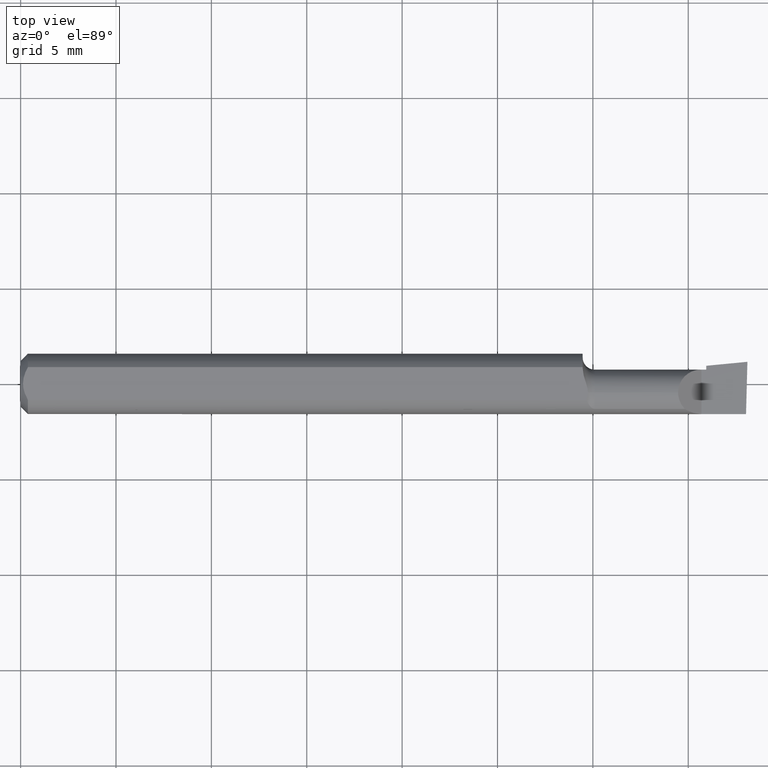
[diagram: clean part render]
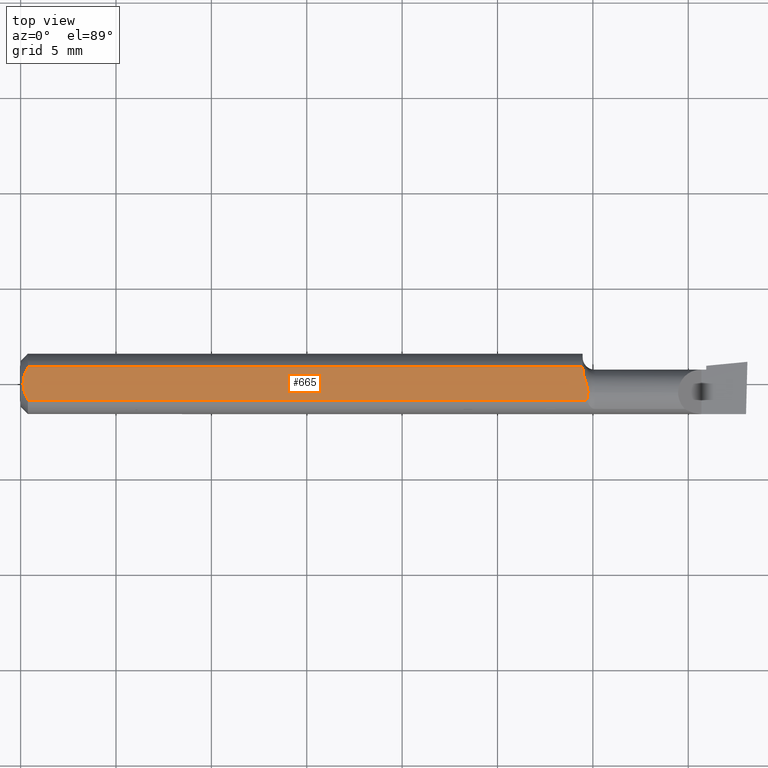
[diagram: same view with one face highlighted and labeled with its STEP entity id]
A machine part, top view. The second image highlights one B-rep face of the part: STEP entity #665.
In plain terms, the highlighted planar face has unit normal (0, -0, -1).
Its self-contained STEP definition (entity closure, byte-faithful):
#17 = CARTESIAN_POINT ( 'NONE',  ( 1.162303760771541628, 0.01498942864105887868, 0.05235000000000000764 ) ) ;
#22 = CARTESIAN_POINT ( 'NONE',  ( 1.166444485955765664, 0.002321921504987352509, 0.05235000000000000070 ) ) ;
#25 = DIRECTION ( 'NONE',  ( 0.0000000000000000000, 1.000000000000000000, -7.598598113218357399E-17 ) ) ;
#32 = CARTESIAN_POINT ( 'NONE',  ( 1.160000000000000142, 0.03386738844375224156, 0.05235000000000000070 ) ) ;
#37 = CARTESIAN_POINT ( 'NONE',  ( 0.0000000000000000000, 0.03386738844375223462, 0.05234999999999997988 ) ) ;
#59 = CARTESIAN_POINT ( 'NONE',  ( 0.004999999999989931769, 7.898418181085889318E-16, 0.05235000000000000070 ) ) ;
#60 = B_SPLINE_CURVE_WITH_KNOTS ( 'NONE', 3,
 ( #541, #86, #195, #139, #642, #85 ),
 .UNSPECIFIED., .F., .F.,
 ( 4, 2, 4 ),
 ( 0.002133667072902290657, 0.002585433046183636171, 0.003037199019464981685 ),
 .UNSPECIFIED. ) ;
#66 = B_SPLINE_CURVE_WITH_KNOTS ( 'NONE', 3,
 ( #222, #232, #276, #448, #228, #286 ),
 .UNSPECIFIED., .F., .F.,
 ( 4, 2, 4 ),
 ( 0.003037199019464981685, 0.003488061124369676216, 0.003938923229274370746 ),
 .UNSPECIFIED. ) ;
#69 = EDGE_LOOP ( 'NONE', ( #683, #397, #644, #487, #325, #192, #713 ) ) ;
#85 = CARTESIAN_POINT ( 'NONE',  ( 0.004999999999989931769, 7.898418181085889318E-16, 0.05235000000000000070 ) ) ;
#86 = CARTESIAN_POINT ( 'NONE',  ( 0.01216137397042175820, -0.02864146636719541034, 0.05235000000000000070 ) ) ;
#106 = FACE_OUTER_BOUND ( 'NONE', #69, .T. ) ;
#113 = CARTESIAN_POINT ( 'NONE',  ( 1.160000000000000142, 0.03254879782683785944, 0.05235000000000000070 ) ) ;
#120 = CARTESIAN_POINT ( 'NONE',  ( 0.01500000000000185039, -0.03386738844380016850, 0.05235000000000000070 ) ) ;
#124 = EDGE_CURVE ( 'NONE', #633, #579, #174, .T. ) ;
#129 = CARTESIAN_POINT ( 'NONE',  ( 1.500000000000000222, 0.1123499999999999915, 0.05234999999999998682 ) ) ;
#137 = EDGE_CURVE ( 'NONE', #545, #173, #66, .T. ) ;
#139 = CARTESIAN_POINT ( 'NONE',  ( 0.006057557792978140489, -0.01187252718384441616, 0.05234999999999998682 ) ) ;
#144 = CARTESIAN_POINT ( 'NONE',  ( 1.170981797547136827, -0.01840000000000274055, 0.05235000000000000070 ) ) ;
#172 = CARTESIAN_POINT ( 'NONE',  ( 1.170981797547482550, -0.01413225355780883645, 0.05235000000000000070 ) ) ;
#173 = VERTEX_POINT ( 'NONE', #344 ) ;
#174 = B_SPLINE_CURVE_WITH_KNOTS ( 'NONE', 3,
 ( #113, #236, #17, #452, #22, #450, #514, #503, #172, #559 ),
 .UNSPECIFIED., .F., .F.,
 ( 4, 2, 2, 2, 4 ),
 ( 0.008710904206567291266, 0.009350419755586248521, 0.009510298642840987401, 0.009670177530095726282, 0.009989935304605205776 ),
 .UNSPECIFIED. ) ;
#192 = ORIENTED_EDGE ( 'NONE', *, *, #238, .F. ) ;
#195 = CARTESIAN_POINT ( 'NONE',  ( 0.009678036133109307534, -0.02325481837211496039, 0.05235000000000000070 ) ) ;
#205 = VECTOR ( 'NONE', #428, 39.37007874015748143 ) ;
#216 = VERTEX_POINT ( 'NONE', #32 ) ;
#222 = CARTESIAN_POINT ( 'NONE',  ( 0.004999999999989931769, 7.898418181085889318E-16, 0.05235000000000000070 ) ) ;
#224 = VECTOR ( 'NONE', #417, 39.37007874015748143 ) ;
#228 = CARTESIAN_POINT ( 'NONE',  ( 0.01218518006020415795, 0.02868529347538067639, 0.05235000000000000070 ) ) ;
#232 = CARTESIAN_POINT ( 'NONE',  ( 0.004999999999999268051, 0.005945714695019511074, 0.05235000000000000070 ) ) ;
#236 = CARTESIAN_POINT ( 'NONE',  ( 1.159999999999999254, 0.02370330699131464880, 0.05234999999999997988 ) ) ;
#238 = EDGE_CURVE ( 'NONE', #356, #684, #582, .T. ) ;
#241 = B_SPLINE_CURVE_WITH_KNOTS ( 'NONE', 3,
 ( #144, #471, #360, #474, #695, #645 ),
 .UNSPECIFIED., .F., .F.,
 ( 4, 2, 4 ),
 ( 0.0004198066361325443713, 0.0006196367099741925157, 0.0008194667838158407143 ),
 .UNSPECIFIED. ) ;
#276 = CARTESIAN_POINT ( 'NONE',  ( 0.006064493299689842180, 0.01189382783781397189, 0.05235000000000000070 ) ) ;
#280 = PLANE ( 'NONE',  #693 ) ;
#286 = CARTESIAN_POINT ( 'NONE',  ( 0.01500000000000000465, 0.03386738844375223462, 0.05234999999999997988 ) ) ;
#295 = CARTESIAN_POINT ( 'NONE',  ( 0.0000000000000000000, -0.03386738844375222768, 0.05234999999999997988 ) ) ;
#307 = CARTESIAN_POINT ( 'NONE',  ( 1.168143989668697369, -0.03386738844377055330, 0.05235000000000000070 ) ) ;
#325 = ORIENTED_EDGE ( 'NONE', *, *, #400, .F. ) ;
#344 = CARTESIAN_POINT ( 'NONE',  ( 0.01500000000000000465, 0.03386738844375223462, 0.05234999999999997988 ) ) ;
#356 = VERTEX_POINT ( 'NONE', #307 ) ;
#360 = CARTESIAN_POINT ( 'NONE',  ( 1.170671187942869063, -0.02367561104898162697, 0.05235000000000000070 ) ) ;
#385 = DIRECTION ( 'NONE',  ( 0.0000000000000000000, -1.000000000000000000, 7.598598113218357399E-17 ) ) ;
#386 = EDGE_CURVE ( 'NONE', #579, #356, #241, .T. ) ;
#397 = ORIENTED_EDGE ( 'NONE', *, *, #606, .F. ) ;
#400 = EDGE_CURVE ( 'NONE', #684, #545, #60, .T. ) ;
#412 = EDGE_CURVE ( 'NONE', #173, #216, #475, .T. ) ;
#417 = DIRECTION ( 'NONE',  ( -1.000000000000000000, -0.0000000000000000000, -0.0000000000000000000 ) ) ;
#428 = DIRECTION ( 'NONE',  ( 1.000000000000000000, 0.0000000000000000000, 0.0000000000000000000 ) ) ;
#448 = CARTESIAN_POINT ( 'NONE',  ( 0.009669996313769784607, 0.02323004575534281385, 0.05234999999999998682 ) ) ;
#450 = CARTESIAN_POINT ( 'NONE',  ( 1.167828966321618145, -0.001899322570691361085, 0.05235000000000000070 ) ) ;
#452 = CARTESIAN_POINT ( 'NONE',  ( 1.165733277589589001, 0.004426912553965794105, 0.05234999999999998682 ) ) ;
#471 = CARTESIAN_POINT ( 'NONE',  ( 1.170981797547469228, -0.02106709414031691582, 0.05235000000000000070 ) ) ;
#474 = CARTESIAN_POINT ( 'NONE',  ( 1.169639022305010156, -0.02881514531779550206, 0.05234999999999998682 ) ) ;
#475 = LINE ( 'NONE', #37, #205 ) ;
#483 = VECTOR ( 'NONE', #385, 39.37007874015748143 ) ;
#487 = ORIENTED_EDGE ( 'NONE', *, *, #137, .F. ) ;
#503 = CARTESIAN_POINT ( 'NONE',  ( 1.170168994702040388, -0.01001121285792164022, 0.05235000000000001458 ) ) ;
#514 = CARTESIAN_POINT ( 'NONE',  ( 1.168472688040297136, -0.003926822060867220937, 0.05235000000000000070 ) ) ;
#517 = DIRECTION ( 'NONE',  ( 0.0000000000000000000, -7.598598113218357399E-17, -1.000000000000000000 ) ) ;
#541 = CARTESIAN_POINT ( 'NONE',  ( 0.01500000000000185039, -0.03386738844380016850, 0.05235000000000000070 ) ) ;
#545 = VERTEX_POINT ( 'NONE', #59 ) ;
#554 = CARTESIAN_POINT ( 'NONE',  ( 1.170981797547136827, -0.01840000000000274055, 0.05235000000000000070 ) ) ;
#559 = CARTESIAN_POINT ( 'NONE',  ( 1.170981797547136827, -0.01840000000000274055, 0.05235000000000000070 ) ) ;
#573 = CARTESIAN_POINT ( 'NONE',  ( 1.160000000000000142, 0.03254879782683785944, 0.05235000000000000070 ) ) ;
#579 = VERTEX_POINT ( 'NONE', #554 ) ;
#582 = LINE ( 'NONE', #295, #224 ) ;
#603 = CARTESIAN_POINT ( 'NONE',  ( 1.160000000000000142, 0.1123499999999999915, 0.05234999999999998682 ) ) ;
#606 = EDGE_CURVE ( 'NONE', #216, #633, #681, .T. ) ;
#633 = VERTEX_POINT ( 'NONE', #573 ) ;
#642 = CARTESIAN_POINT ( 'NONE',  ( 0.004999999999998879473, -0.005957634400466955450, 0.05235000000000000070 ) ) ;
#644 = ORIENTED_EDGE ( 'NONE', *, *, #412, .F. ) ;
#645 = CARTESIAN_POINT ( 'NONE',  ( 1.168143989668697369, -0.03386738844377055330, 0.05235000000000000070 ) ) ;
#665 = ADVANCED_FACE ( 'NONE', ( #106 ), #280, .F. ) ;
#681 = LINE ( 'NONE', #603, #483 ) ;
#683 = ORIENTED_EDGE ( 'NONE', *, *, #124, .F. ) ;
#684 = VERTEX_POINT ( 'NONE', #120 ) ;
#693 = AXIS2_PLACEMENT_3D ( 'NONE', #129, #517, #25 ) ;
#695 = CARTESIAN_POINT ( 'NONE',  ( 1.168925984400744467, -0.03134776909451143095, 0.05235000000000000070 ) ) ;
#713 = ORIENTED_EDGE ( 'NONE', *, *, #386, .F. ) ;